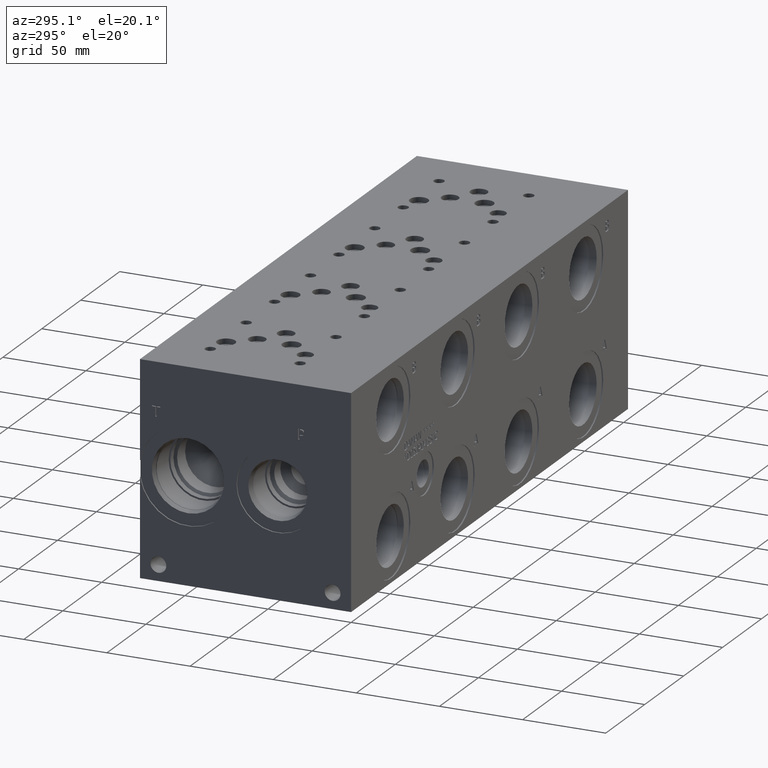
[diagram: clean part render]
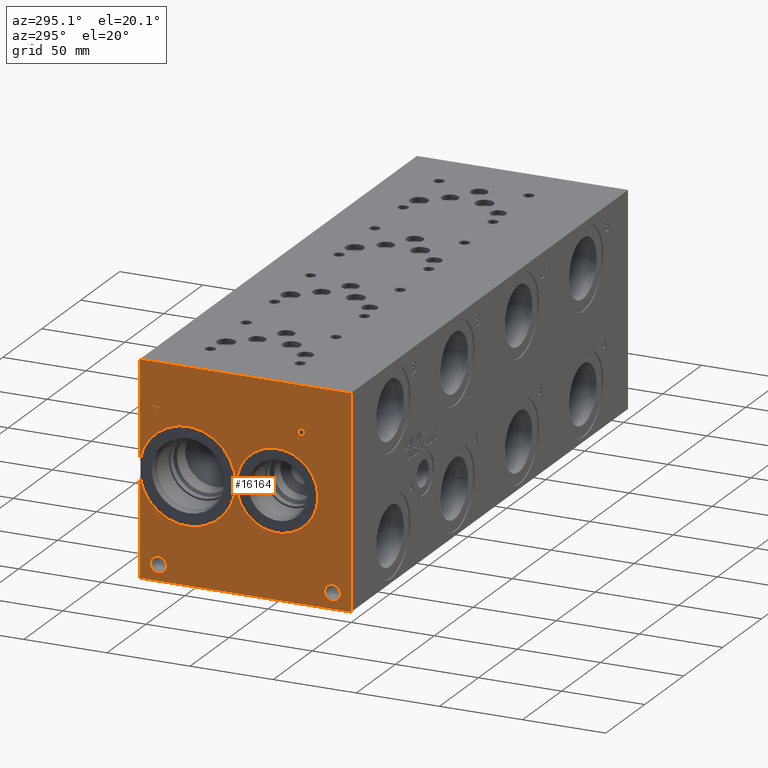
[diagram: same view with one face highlighted and labeled with its STEP entity id]
A machine part, auxiliary view. The second image highlights one B-rep face of the part: STEP entity #16164.
In plain terms, the highlighted planar face has unit normal (-1, 0, 0).
Its self-contained STEP definition (entity closure, byte-faithful):
#470=CIRCLE('',#16882,28.9814);
#471=CIRCLE('',#16883,24.4856);
#472=CIRCLE('',#16884,24.4856);
#473=CIRCLE('',#16885,4.7625);
#474=CIRCLE('',#16886,4.7625);
#475=CIRCLE('',#16887,4.7625);
#476=CIRCLE('',#16888,4.7625);
#1309=B_SPLINE_CURVE_WITH_KNOTS('',2,(#26680,#26681,#26682,#26683),
 .UNSPECIFIED.,.F.,.F.,(3,1,3),(0.,1.,2.),.UNSPECIFIED.);
#1311=B_SPLINE_CURVE_WITH_KNOTS('',2,(#26701,#26702,#26703,#26704),
 .UNSPECIFIED.,.F.,.F.,(3,1,3),(0.,1.,2.),.UNSPECIFIED.);
#1313=B_SPLINE_CURVE_WITH_KNOTS('',2,(#26750,#26751,#26752,#26753),
 .UNSPECIFIED.,.F.,.F.,(3,1,3),(0.,1.,2.),.UNSPECIFIED.);
#1315=B_SPLINE_CURVE_WITH_KNOTS('',2,(#26768,#26769,#26770,#26771),
 .UNSPECIFIED.,.F.,.F.,(3,1,3),(0.,1.,2.),.UNSPECIFIED.);
#1392=FACE_BOUND('',#2940,.T.);
#1393=FACE_BOUND('',#2941,.T.);
#1394=FACE_BOUND('',#2942,.T.);
#1395=FACE_BOUND('',#2943,.T.);
#1396=FACE_BOUND('',#2944,.T.);
#2014=FACE_OUTER_BOUND('',#2939,.T.);
#2939=EDGE_LOOP('',(#12935,#12936,#12937,#12938,#12939,#12940));
#2940=EDGE_LOOP('',(#12941,#12942));
#2941=EDGE_LOOP('',(#12943,#12944));
#2942=EDGE_LOOP('',(#12945,#12946));
#2943=EDGE_LOOP('',(#12947,#12948,#12949,#12950,#12951,#12952,#12953,#12954));
#2944=EDGE_LOOP('',(#12955,#12956,#12957,#12958,#12959,#12960,#12961,#12962,
#12963));
#3411=LINE('',#21549,#4824);
#4429=LINE('',#26713,#5842);
#4432=LINE('',#26719,#5845);
#4435=LINE('',#26725,#5848);
#4438=LINE('',#26731,#5851);
#4441=LINE('',#26737,#5854);
#4445=LINE('',#26782,#5858);
#4446=LINE('',#26783,#5859);
#4447=LINE('',#26785,#5860);
#4448=LINE('',#26786,#5861);
#4449=LINE('',#26801,#5862);
#4450=LINE('',#26803,#5863);
#4451=LINE('',#26805,#5864);
#4452=LINE('',#26807,#5865);
#4453=LINE('',#26809,#5866);
#4454=LINE('',#26811,#5867);
#4455=LINE('',#26813,#5868);
#4456=LINE('',#26814,#5869);
#4824=VECTOR('',#17762,10.);
#5842=VECTOR('',#19470,10.);
#5845=VECTOR('',#19475,10.);
#5848=VECTOR('',#19480,10.);
#5851=VECTOR('',#19485,10.);
#5854=VECTOR('',#19490,10.);
#5858=VECTOR('',#19500,10.);
#5859=VECTOR('',#19501,10.);
#5860=VECTOR('',#19502,10.);
#5861=VECTOR('',#19503,10.);
#5862=VECTOR('',#19516,10.);
#5863=VECTOR('',#19517,10.);
#5864=VECTOR('',#19518,10.);
#5865=VECTOR('',#19519,10.);
#5866=VECTOR('',#19520,10.);
#5867=VECTOR('',#19521,10.);
#5868=VECTOR('',#19522,10.);
#5869=VECTOR('',#19523,10.);
#6223=VERTEX_POINT('',#21542);
#6226=VERTEX_POINT('',#21547);
#7157=VERTEX_POINT('',#26678);
#7158=VERTEX_POINT('',#26679);
#7161=VERTEX_POINT('',#26700);
#7163=VERTEX_POINT('',#26712);
#7165=VERTEX_POINT('',#26718);
#7167=VERTEX_POINT('',#26724);
#7169=VERTEX_POINT('',#26730);
#7171=VERTEX_POINT('',#26736);
#7173=VERTEX_POINT('',#26749);
#7175=VERTEX_POINT('',#26778);
#7176=VERTEX_POINT('',#26779);
#7177=VERTEX_POINT('',#26781);
#7178=VERTEX_POINT('',#26784);
#7179=VERTEX_POINT('',#26787);
#7180=VERTEX_POINT('',#26788);
#7181=VERTEX_POINT('',#26791);
#7182=VERTEX_POINT('',#26792);
#7183=VERTEX_POINT('',#26795);
#7184=VERTEX_POINT('',#26796);
#7185=VERTEX_POINT('',#26799);
#7186=VERTEX_POINT('',#26800);
#7187=VERTEX_POINT('',#26802);
#7188=VERTEX_POINT('',#26804);
#7189=VERTEX_POINT('',#26806);
#7190=VERTEX_POINT('',#26808);
#7191=VERTEX_POINT('',#26810);
#7192=VERTEX_POINT('',#26812);
#7822=EDGE_CURVE('',#6223,#6226,#3411,.T.);
#9209=EDGE_CURVE('',#7157,#7158,#1309,.T.);
#9213=EDGE_CURVE('',#7161,#7157,#1311,.T.);
#9216=EDGE_CURVE('',#7163,#7161,#4429,.T.);
#9219=EDGE_CURVE('',#7165,#7163,#4432,.T.);
#9222=EDGE_CURVE('',#7167,#7165,#4435,.T.);
#9225=EDGE_CURVE('',#7169,#7167,#4438,.T.);
#9228=EDGE_CURVE('',#7171,#7169,#4441,.T.);
#9231=EDGE_CURVE('',#7173,#7171,#1313,.T.);
#9234=EDGE_CURVE('',#7158,#7173,#1315,.T.);
#9236=EDGE_CURVE('',#7175,#7176,#470,.T.);
#9237=EDGE_CURVE('',#7177,#7176,#4445,.T.);
#9238=EDGE_CURVE('',#7177,#6223,#4446,.T.);
#9239=EDGE_CURVE('',#7178,#6226,#4447,.T.);
#9240=EDGE_CURVE('',#7175,#7178,#4448,.T.);
#9241=EDGE_CURVE('',#7179,#7180,#471,.T.);
#9242=EDGE_CURVE('',#7180,#7179,#472,.T.);
#9243=EDGE_CURVE('',#7181,#7182,#473,.T.);
#9244=EDGE_CURVE('',#7182,#7181,#474,.T.);
#9245=EDGE_CURVE('',#7183,#7184,#475,.T.);
#9246=EDGE_CURVE('',#7184,#7183,#476,.T.);
#9247=EDGE_CURVE('',#7185,#7186,#4449,.T.);
#9248=EDGE_CURVE('',#7186,#7187,#4450,.T.);
#9249=EDGE_CURVE('',#7187,#7188,#4451,.T.);
#9250=EDGE_CURVE('',#7188,#7189,#4452,.T.);
#9251=EDGE_CURVE('',#7189,#7190,#4453,.T.);
#9252=EDGE_CURVE('',#7190,#7191,#4454,.T.);
#9253=EDGE_CURVE('',#7191,#7192,#4455,.T.);
#9254=EDGE_CURVE('',#7192,#7185,#4456,.T.);
#12935=ORIENTED_EDGE('',*,*,#9236,.T.);
#12936=ORIENTED_EDGE('',*,*,#9237,.F.);
#12937=ORIENTED_EDGE('',*,*,#9238,.T.);
#12938=ORIENTED_EDGE('',*,*,#7822,.T.);
#12939=ORIENTED_EDGE('',*,*,#9239,.F.);
#12940=ORIENTED_EDGE('',*,*,#9240,.F.);
#12941=ORIENTED_EDGE('',*,*,#9241,.T.);
#12942=ORIENTED_EDGE('',*,*,#9242,.T.);
#12943=ORIENTED_EDGE('',*,*,#9243,.T.);
#12944=ORIENTED_EDGE('',*,*,#9244,.T.);
#12945=ORIENTED_EDGE('',*,*,#9245,.T.);
#12946=ORIENTED_EDGE('',*,*,#9246,.T.);
#12947=ORIENTED_EDGE('',*,*,#9247,.T.);
#12948=ORIENTED_EDGE('',*,*,#9248,.T.);
#12949=ORIENTED_EDGE('',*,*,#9249,.T.);
#12950=ORIENTED_EDGE('',*,*,#9250,.T.);
#12951=ORIENTED_EDGE('',*,*,#9251,.T.);
#12952=ORIENTED_EDGE('',*,*,#9252,.T.);
#12953=ORIENTED_EDGE('',*,*,#9253,.T.);
#12954=ORIENTED_EDGE('',*,*,#9254,.T.);
#12955=ORIENTED_EDGE('',*,*,#9209,.T.);
#12956=ORIENTED_EDGE('',*,*,#9234,.T.);
#12957=ORIENTED_EDGE('',*,*,#9231,.T.);
#12958=ORIENTED_EDGE('',*,*,#9228,.T.);
#12959=ORIENTED_EDGE('',*,*,#9225,.T.);
#12960=ORIENTED_EDGE('',*,*,#9222,.T.);
#12961=ORIENTED_EDGE('',*,*,#9219,.T.);
#12962=ORIENTED_EDGE('',*,*,#9216,.T.);
#12963=ORIENTED_EDGE('',*,*,#9213,.T.);
#15013=PLANE('',#16881);
#16164=ADVANCED_FACE('',(#2014,#1392,#1393,#1394,#1395,#1396),#15013,.T.);
#16881=AXIS2_PLACEMENT_3D('',#26777,#19496,#19497);
#16882=AXIS2_PLACEMENT_3D('',#26780,#19498,#19499);
#16883=AXIS2_PLACEMENT_3D('',#26789,#19504,#19505);
#16884=AXIS2_PLACEMENT_3D('',#26790,#19506,#19507);
#16885=AXIS2_PLACEMENT_3D('',#26793,#19508,#19509);
#16886=AXIS2_PLACEMENT_3D('',#26794,#19510,#19511);
#16887=AXIS2_PLACEMENT_3D('',#26797,#19512,#19513);
#16888=AXIS2_PLACEMENT_3D('',#26798,#19514,#19515);
#17762=DIRECTION('',(0.,0.,1.));
#19470=DIRECTION('',(0.,-1.,-1.11355060845355E-14));
#19475=DIRECTION('',(0.,-3.49676548440641E-15,1.));
#19480=DIRECTION('',(0.,1.,2.10488224768659E-14));
#19485=DIRECTION('',(0.,3.75218139804998E-15,-1.));
#19490=DIRECTION('',(0.,1.,0.));
#19496=DIRECTION('center_axis',(-1.,0.,0.));
#19497=DIRECTION('ref_axis',(0.,-1.,0.));
#19498=DIRECTION('center_axis',(1.,0.,0.));
#19499=DIRECTION('ref_axis',(0.,0.,1.));
#19500=DIRECTION('',(0.,0.,1.));
#19501=DIRECTION('',(0.,-1.,0.));
#19502=DIRECTION('',(0.,-1.,0.));
#19503=DIRECTION('',(0.,0.,1.));
#19504=DIRECTION('center_axis',(1.,0.,0.));
#19505=DIRECTION('ref_axis',(0.,1.,0.));
#19506=DIRECTION('center_axis',(1.,0.,0.));
#19507=DIRECTION('ref_axis',(0.,1.,0.));
#19508=DIRECTION('center_axis',(1.,0.,0.));
#19509=DIRECTION('ref_axis',(0.,1.,0.));
#19510=DIRECTION('center_axis',(1.,0.,0.));
#19511=DIRECTION('ref_axis',(0.,1.,0.));
#19512=DIRECTION('center_axis',(1.,0.,0.));
#19513=DIRECTION('ref_axis',(0.,1.,0.));
#19514=DIRECTION('center_axis',(1.,0.,0.));
#19515=DIRECTION('ref_axis',(0.,1.,0.));
#19516=DIRECTION('',(0.,1.,0.));
#19517=DIRECTION('',(0.,-3.17280044688051E-15,1.));
#19518=DIRECTION('',(0.,1.,0.));
#19519=DIRECTION('',(0.,0.,1.));
#19520=DIRECTION('',(0.,-1.,-3.47984565141734E-15));
#19521=DIRECTION('',(0.,0.,-1.));
#19522=DIRECTION('',(0.,1.,8.33818088455555E-15));
#19523=DIRECTION('',(0.,3.17280044688051E-15,-1.));
#21542=CARTESIAN_POINT('',(0.,0.,0.));
#21547=CARTESIAN_POINT('',(0.,0.,127.));
#21549=CARTESIAN_POINT('',(0.,0.,0.));
#26678=CARTESIAN_POINT('',(0.,28.6431827976406,101.203768143971));
#26679=CARTESIAN_POINT('',(0.,27.886740345468,99.6857373726039));
#26680=CARTESIAN_POINT('Ctrl Pts',(0.,28.6431827976406,101.203768143971));
#26681=CARTESIAN_POINT('Ctrl Pts',(0.,28.2881179731514,100.961912393956));
#26682=CARTESIAN_POINT('Ctrl Pts',(0.,27.886740345468,100.215761675827));
#26683=CARTESIAN_POINT('Ctrl Pts',(0.,27.886740345468,99.6857373726039));
#26700=CARTESIAN_POINT('',(0.,30.3052978456117,101.599999904633));
#26701=CARTESIAN_POINT('Ctrl Pts',(0.,30.3052978456117,101.599999904633));
#26702=CARTESIAN_POINT('Ctrl Pts',(0.,29.7392524732376,101.599999904633));
#26703=CARTESIAN_POINT('Ctrl Pts',(0.,28.946788951914,101.414748691856));
#26704=CARTESIAN_POINT('Ctrl Pts',(0.,28.6431827976406,101.203768143971));
#26712=CARTESIAN_POINT('',(0.,31.9005166223022,101.599999904633));
#26713=CARTESIAN_POINT('',(0.,79.4502583111505,101.599999904633));
#26718=CARTESIAN_POINT('',(0.,31.9005166223022,95.25));
#26719=CARTESIAN_POINT('',(0.,31.9005166223024,47.6249999999998));
#26724=CARTESIAN_POINT('',(0.,31.0565944307627,95.25));
#26725=CARTESIAN_POINT('',(0.,79.0282972153804,95.250000000001));
#26730=CARTESIAN_POINT('',(0.,31.0565944307627,97.6170988299279));
#26731=CARTESIAN_POINT('',(0.,31.0565944307629,48.8085494149637));
#26736=CARTESIAN_POINT('',(0.,30.3413189147628,97.6170988299279));
#26737=CARTESIAN_POINT('',(0.,78.6706594573814,97.6170988299279));
#26749=CARTESIAN_POINT('',(0.,28.4424939837989,98.2757698086904));
#26750=CARTESIAN_POINT('Ctrl Pts',(0.,28.4424939837989,98.2757698086904));
#26751=CARTESIAN_POINT('Ctrl Pts',(0.,28.7718294731802,97.9515801863307));
#26752=CARTESIAN_POINT('Ctrl Pts',(0.,29.6620644679139,97.6170988299279));
#26753=CARTESIAN_POINT('Ctrl Pts',(0.,30.3413189147628,97.6170988299279));
#26768=CARTESIAN_POINT('Ctrl Pts',(0.,27.886740345468,99.6857373726039));
#26769=CARTESIAN_POINT('Ctrl Pts',(0.,27.886740345468,99.2740680108773));
#26770=CARTESIAN_POINT('Ctrl Pts',(0.,28.1800547656982,98.5330631597695));
#26771=CARTESIAN_POINT('Ctrl Pts',(0.,28.4424939837989,98.2757698086904));
#26777=CARTESIAN_POINT('Origin',(0.,127.,0.));
#26778=CARTESIAN_POINT('',(0.,127.,68.3364161276714));
#26779=CARTESIAN_POINT('',(0.,127.,58.6635838723286));
#26780=CARTESIAN_POINT('Origin',(0.,98.425,63.5));
#26781=CARTESIAN_POINT('',(0.,127.,0.));
#26782=CARTESIAN_POINT('',(0.,127.,0.));
#26783=CARTESIAN_POINT('',(0.,127.,0.));
#26784=CARTESIAN_POINT('',(0.,127.,127.));
#26785=CARTESIAN_POINT('',(0.,127.,127.));
#26786=CARTESIAN_POINT('',(0.,127.,0.));
#26787=CARTESIAN_POINT('',(0.,68.9356,63.5));
#26788=CARTESIAN_POINT('',(0.,19.9644,63.5));
#26789=CARTESIAN_POINT('Origin',(0.,44.45,63.5));
#26790=CARTESIAN_POINT('Origin',(0.,44.45,63.5));
#26791=CARTESIAN_POINT('',(0.,120.6627,9.52500000000001));
#26792=CARTESIAN_POINT('',(0.,111.1377,9.52500000000001));
#26793=CARTESIAN_POINT('Origin',(0.,115.9002,9.52500000000001));
#26794=CARTESIAN_POINT('Origin',(0.,115.9002,9.52500000000001));
#26795=CARTESIAN_POINT('',(0.,15.8877,9.52500000000001));
#26796=CARTESIAN_POINT('',(0.,6.3627,9.52500000000001));
#26797=CARTESIAN_POINT('Origin',(0.,11.1252,9.52500000000001));
#26798=CARTESIAN_POINT('Origin',(0.,11.1252,9.52500000000001));
#26799=CARTESIAN_POINT('',(0.,116.887084728547,95.25));
#26800=CARTESIAN_POINT('',(0.,117.731006920087,95.25));
#26801=CARTESIAN_POINT('',(0.,121.943542364274,95.25));
#26802=CARTESIAN_POINT('',(0.,117.731006920086,100.848703319482));
#26803=CARTESIAN_POINT('',(0.,117.731006920087,47.625));
#26804=CARTESIAN_POINT('',(0.,119.861395867022,100.848703319482));
#26805=CARTESIAN_POINT('',(0.,122.365503460043,100.848703319482));
#26806=CARTESIAN_POINT('',(0.,119.861395867022,101.599999904633));
#26807=CARTESIAN_POINT('',(0.,119.861395867022,50.4243516597408));
#26808=CARTESIAN_POINT('',(0.,114.756695781612,101.599999904633));
#26809=CARTESIAN_POINT('',(0.,123.430697933511,101.599999904633));
#26810=CARTESIAN_POINT('',(0.,114.756695781612,100.848703319482));
#26811=CARTESIAN_POINT('',(0.,114.756695781612,50.7999999523163));
#26812=CARTESIAN_POINT('',(0.,116.887084728547,100.848703319482));
#26813=CARTESIAN_POINT('',(0.,120.878347890806,100.848703319482));
#26814=CARTESIAN_POINT('',(0.,116.887084728547,50.4243516597408));